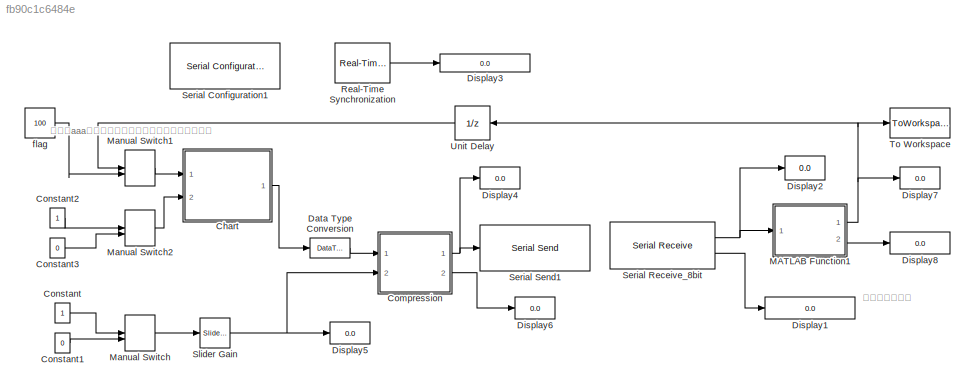
MODEL slx_fb90c1c6484e
KIND model
CONFIG AbsTol = auto
CONFIG EnableMultiTasking = off
CONFIG FixedStep = auto
CONFIG MaxStep = auto
CONFIG MinStep = auto
CONFIG RelTol = 1e-3
CONFIG SampleTimeConstraint = Unconstrained
CONFIG Solver = VariableStepAuto
CONFIG SolverName = VariableStepAuto
CONFIG StartTime = 0.0
CONFIG StopTime = inf
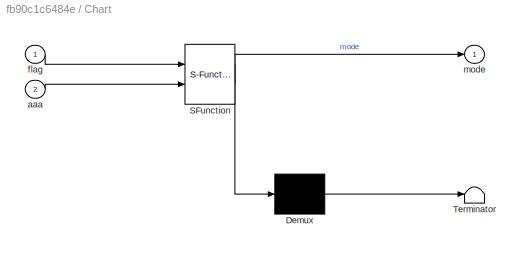
BLOCK [SubSystem] Chart
  ErrorFcn = Stateflow.Translate.translate
  PermitHierarchicalResolution = ExplicitOnly
  Ports = [2, 1]
  RequestExecContextInheritance = off
  SFBlockType = Chart
  TreatAsAtomicUnit = on
  Variant = off
BLOCK [Demux] Chart/ Demux 
  Outputs = 1
  Ports = [1, 1]
BLOCK [S-Function] Chart/ SFunction 
  EnableBusSupport = on
  FunctionName = sf_sfun
  PortCounts = [2 2]
  Ports = [2, 2]
  SFcnIsStateOwnerBlock = off
  SFunctionDeploymentMode = off
  Tag = Stateflow S-Function test_EE_ver02 3
BLOCK [Terminator] Chart/ Terminator 
BLOCK [Inport] Chart/aaa
  IconDisplay = Port number
  Port = 2
BLOCK [Inport] Chart/flag
  IconDisplay = Port number
BLOCK [Outport] Chart/mode
  IconDisplay = Port number
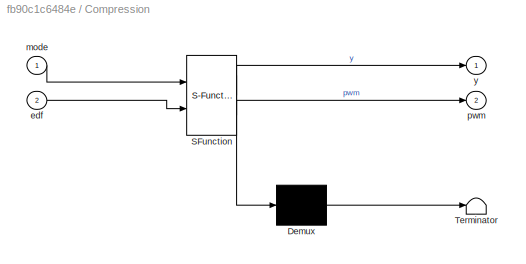
BLOCK [SubSystem] Compression
  ErrorFcn = Stateflow.Translate.translate
  PermitHierarchicalResolution = ExplicitOnly
  Ports = [2, 2]
  RequestExecContextInheritance = off
  SFBlockType = MATLAB Function
  TreatAsAtomicUnit = on
  Variant = off
BLOCK [Demux] Compression/ Demux 
  Outputs = 1
  Ports = [1, 1]
BLOCK [S-Function] Compression/ SFunction 
  EnableBusSupport = on
  FunctionName = sf_sfun
  PortCounts = [2 3]
  Ports = [2, 3]
  SFcnIsStateOwnerBlock = off
  SFunctionDeploymentMode = off
  Tag = Stateflow S-Function test_EE_ver02 2
BLOCK [Terminator] Compression/ Terminator 
BLOCK [Inport] Compression/edf
  IconDisplay = Port number
  Port = 2
BLOCK [Inport] Compression/mode
  IconDisplay = Port number
BLOCK [Outport] Compression/pwm
  IconDisplay = Port number
  Port = 2
BLOCK [Outport] Compression/y
  IconDisplay = Port number
BLOCK [Constant] Constant
  SampleTime = 0.1
BLOCK [Constant] Constant1
  SampleTime = 0.1
  Value = 0
BLOCK [Constant] Constant2
  SampleTime = 0.1
BLOCK [Constant] Constant3
  SampleTime = 0.1
  Value = 0
BLOCK [DataTypeConversion] Data Type Conversion
  OutDataTypeStr = uint8
  RndMeth = Floor
  SaturateOnIntegerOverflow = off
BLOCK [Display] Display1
  Decimation = 1
  Format = long
  Ports = [1]
BLOCK [Display] Display2
  Decimation = 1
  Format = long
  Ports = [1]
BLOCK [Display] Display3
  Commented = on
  Decimation = 1
  Format = long
  Ports = [1]
BLOCK [Display] Display4
  Decimation = 1
  Format = long
  Ports = [1]
BLOCK [Display] Display5
  Decimation = 1
  Format = long
  Ports = [1]
BLOCK [Display] Display6
  Decimation = 1
  Format = long
  Ports = [1]
BLOCK [Display] Display7
  Decimation = 1
  Format = long
  Ports = [1]
BLOCK [Display] Display8
  Decimation = 1
  Format = long
  Ports = [1]
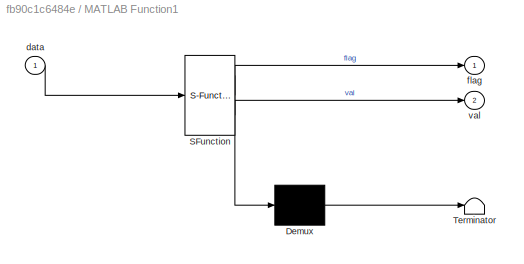
BLOCK [SubSystem] MATLAB Function1
  ErrorFcn = Stateflow.Translate.translate
  PermitHierarchicalResolution = ExplicitOnly
  Ports = [1, 2]
  RequestExecContextInheritance = off
  SFBlockType = MATLAB Function
  TreatAsAtomicUnit = on
  Variant = off
BLOCK [Demux] MATLAB Function1/ Demux 
  Outputs = 1
  Ports = [1, 1]
BLOCK [S-Function] MATLAB Function1/ SFunction 
  EnableBusSupport = on
  FunctionName = sf_sfun
  PortCounts = [1 3]
  Ports = [1, 3]
  SFcnIsStateOwnerBlock = off
  SFunctionDeploymentMode = off
  Tag = Stateflow S-Function test_EE_ver02 1
BLOCK [Terminator] MATLAB Function1/ Terminator 
BLOCK [Inport] MATLAB Function1/data
  IconDisplay = Port number
BLOCK [Outport] MATLAB Function1/flag
  IconDisplay = Port number
BLOCK [Outport] MATLAB Function1/val
  IconDisplay = Port number
  Port = 2
BLOCK [ManualSwitch] Manual Switch
BLOCK [ManualSwitch] Manual Switch1
BLOCK [ManualSwitch] Manual Switch2
  CurrentSetting = 0
BLOCK [Reference] Real-Time Synchronization  REF=sldrtlib/Real-Time
Synchronization
  Commented = on
  Ports = [0, 1]
  SourceBlock = sldrtlib/Real-Time\nSynchronization
  SourceProductBaseCode = WT
  SourceProductName = Simulink Desktop Real-Time
  SourceType = Simulink Desktop Real-Time Synchronization
BLOCK [Reference] Serial Configuration1  REF=instrumentlib/Serial Configuration
  Ports = []
  Priority = -200000
  SourceBlock = instrumentlib/Serial Configuration
  SourceProductBaseCode = IC
  SourceProductName = Instrument Control Toolbox
  SourceType = Serial Configuration
BLOCK [Reference] Serial Receive_8bit  REF=instrumentlib/Serial Receive
  Ports = [0, 2]
  SourceBlock = instrumentlib/Serial Receive
  SourceProductBaseCode = IC
  SourceProductName = Instrument Control Toolbox
  SourceType = Serial Receive
BLOCK [Reference] Serial Send1  REF=instrumentlib/Serial Send
  Ports = [1]
  SourceBlock = instrumentlib/Serial Send
  SourceProductBaseCode = IC
  SourceProductName = Instrument Control Toolbox
  SourceType = Serial Send
BLOCK [Reference] Slider Gain  REF=simulink/Math
Operations/Slider
Gain
  Ports = [1, 1]
  SourceBlock = simulink/Math\nOperations/Slider\nGain
  SourceProductBaseCode = SL
  SourceProductName = Simulink
  SourceType = Slider Gain
BLOCK [ToWorkspace] To Workspace
  FixptAsFi = on
  MaxDataPoints = inf
  Ports = [1]
  SampleTime = -1
  Save2DSignal = 3-D array (concatenate along third dimension)
  SaveFormat = Timeseries
  VariableName = simout
BLOCK [UnitDelay] Unit Delay
  InputProcessing = Elements as channels (sample based)
  SampleTime = -1
BLOCK [Constant] flag
  OutDataTypeStr = uint8
  SampleTime = 0.1
  Value = 100
ANNOTATION (root): 光センサの反応
ANNOTATION (root): ※変数aaaは、すぐに刃が開かないようにするため
LINE Chart:1 -> Data Type Conversion:1
NET Compression:1 -> Display4:1, Serial Send1:1
LINE Compression:2 -> Display6:1
LINE Constant1:1 -> Manual Switch:2
LINE Constant2:1 -> Manual Switch2:1
LINE Constant3:1 -> Manual Switch2:2
LINE Constant:1 -> Manual Switch:1
LINE Data Type Conversion:1 -> Compression:1
NET MATLAB Function1:1 -> Display7:1, To Workspace:1, Unit Delay:1
LINE MATLAB Function1:2 -> Display8:1
LINE Manual Switch1:1 -> Chart:1
LINE Manual Switch2:1 -> Chart:2
LINE Manual Switch:1 -> Slider Gain:1
LINE Real-Time Synchronization:1 -> Display3:1
NET Serial Receive_8bit:1 -> Display2:1, MATLAB Function1:1
LINE Serial Receive_8bit:2 -> Display1:1
NET Slider Gain:1 -> Compression:2, Display5:1
LINE Unit Delay:1 -> Manual Switch1:1
LINE flag:1 -> Manual Switch1:2
note: NET lines group one-source signal fan-out (src -> all destinations, sorted); 1:1 wires keep LINE
CHART MATLAB Function1 states=1 transitions=1
  STATE_LABEL 'eML_blk_kernel()'
  STATE_LABEL 'SCRIPT:\nfunction [flag,val] = fcn(data)\n\n% 入力(data)を右に5bitシフトして、上位3bitを取り出す\nflag = uint8(bitshift(data,-5));\n\n% 入力(data)と31(00011111)のAND演算をして、下位5bitを取り出す\na = double(bitand(data, 31));\n\nval = double(a * 10 + 800);'
CHART Compression states=1 transitions=1
  STATE_LABEL 'eML_blk_kernel()'
  STATE_LABEL 'SCRIPT:\nfunction [y,pwm] = fcn(mode, edf)\n\nif mode < 0\n    mode = uint8(0);\nelseif mode > 7\n    mode = uint8(7);\nend\n\nif edf > 200\n    edf = 200;\nend\n\npwm = uint8(floor(edf / 10));\n\ny = bitshift(mode,5) + pwm;'
CHART Chart states=5 transitions=8
  STATE_LABEL 'm03/\n% 切断2\nentry:\nmode=3;'
  STATE_LABEL 'm0/\n% 待機\nentry:\nmode=0;'
  STATE_LABEL 'm04/\n% 把持\nentry:\nmode=4;'
  STATE_LABEL 'm01/\n% 吸引\nentry:\nmode=1;'
  STATE_LABEL 'm02/\n% 切断1\nentry:\nmode=2;'
